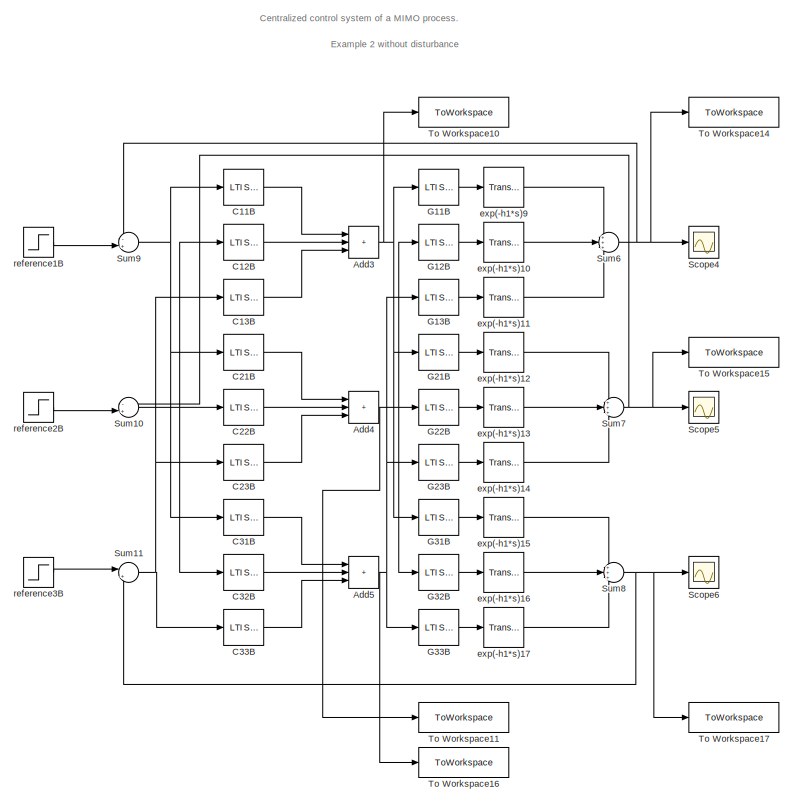
[diagram: root canvas - part 1/3, center side, full height]
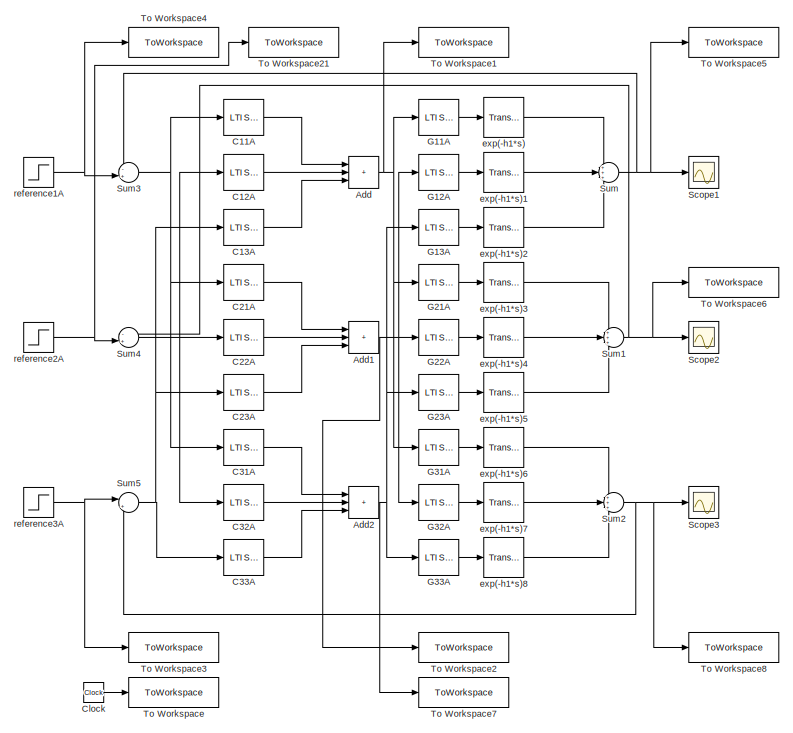
[diagram: root canvas - part 2/3, left side, full height]
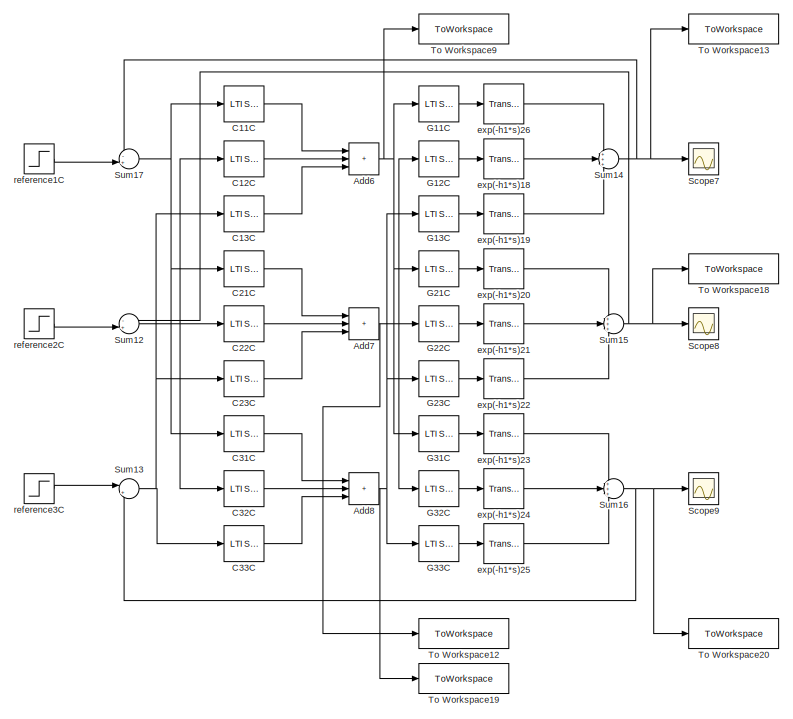
[diagram: root canvas - part 3/3, right side, full height]
MODEL slx_c038fd653a11
KIND model
CONFIG AbsTol = auto
CONFIG EnableMultiTasking = off
CONFIG FixedStep = 1e-5
CONFIG MaxStep = auto
CONFIG MinStep = auto
CONFIG RelTol = 1e-3
CONFIG SampleTimeConstraint = Unconstrained
CONFIG SolverName = FixedStepAuto
CONFIG StartTime = 0.0
CONFIG StopTime = 450
BLOCK [Sum] Add
  IconShape = rectangular
  Inputs = +++
BLOCK [Sum] Add1
  IconShape = rectangular
  Inputs = +++
BLOCK [Sum] Add2
  IconShape = rectangular
  Inputs = +++
BLOCK [Sum] Add3
  IconShape = rectangular
  Inputs = +++
BLOCK [Sum] Add4
  IconShape = rectangular
  Inputs = +++
BLOCK [Sum] Add5
  IconShape = rectangular
  Inputs = +++
BLOCK [Sum] Add6
  IconShape = rectangular
  Inputs = +++
BLOCK [Sum] Add7
  IconShape = rectangular
  Inputs = +++
BLOCK [Sum] Add8
  IconShape = rectangular
  Inputs = +++
BLOCK [Reference] C11A  REF=cstblocks/LTI System
  SourceBlock = cstblocks/LTI System
  SourceType = LTI Block
BLOCK [Reference] C11B  REF=cstblocks/LTI System
  SourceBlock = cstblocks/LTI System
  SourceType = LTI Block
BLOCK [Reference] C11C  REF=cstblocks/LTI System
  SourceBlock = cstblocks/LTI System
  SourceType = LTI Block
BLOCK [Reference] C12A  REF=cstblocks/LTI System
  SourceBlock = cstblocks/LTI System
  SourceType = LTI Block
BLOCK [Reference] C12B  REF=cstblocks/LTI System
  SourceBlock = cstblocks/LTI System
  SourceType = LTI Block
BLOCK [Reference] C12C  REF=cstblocks/LTI System
  SourceBlock = cstblocks/LTI System
  SourceType = LTI Block
BLOCK [Reference] C13A  REF=cstblocks/LTI System
  SourceBlock = cstblocks/LTI System
  SourceType = LTI Block
BLOCK [Reference] C13B  REF=cstblocks/LTI System
  SourceBlock = cstblocks/LTI System
  SourceType = LTI Block
BLOCK [Reference] C13C  REF=cstblocks/LTI System
  SourceBlock = cstblocks/LTI System
  SourceType = LTI Block
BLOCK [Reference] C21A  REF=cstblocks/LTI System
  SourceBlock = cstblocks/LTI System
  SourceType = LTI Block
BLOCK [Reference] C21B  REF=cstblocks/LTI System
  SourceBlock = cstblocks/LTI System
  SourceType = LTI Block
BLOCK [Reference] C21C  REF=cstblocks/LTI System
  SourceBlock = cstblocks/LTI System
  SourceType = LTI Block
BLOCK [Reference] C22A  REF=cstblocks/LTI System
  SourceBlock = cstblocks/LTI System
  SourceType = LTI Block
BLOCK [Reference] C22B  REF=cstblocks/LTI System
  SourceBlock = cstblocks/LTI System
  SourceType = LTI Block
BLOCK [Reference] C22C  REF=cstblocks/LTI System
  SourceBlock = cstblocks/LTI System
  SourceType = LTI Block
BLOCK [Reference] C23A  REF=cstblocks/LTI System
  SourceBlock = cstblocks/LTI System
  SourceType = LTI Block
BLOCK [Reference] C23B  REF=cstblocks/LTI System
  SourceBlock = cstblocks/LTI System
  SourceType = LTI Block
BLOCK [Reference] C23C  REF=cstblocks/LTI System
  SourceBlock = cstblocks/LTI System
  SourceType = LTI Block
BLOCK [Reference] C31A  REF=cstblocks/LTI System
  SourceBlock = cstblocks/LTI System
  SourceType = LTI Block
BLOCK [Reference] C31B  REF=cstblocks/LTI System
  SourceBlock = cstblocks/LTI System
  SourceType = LTI Block
BLOCK [Reference] C31C  REF=cstblocks/LTI System
  SourceBlock = cstblocks/LTI System
  SourceType = LTI Block
BLOCK [Reference] C32A  REF=cstblocks/LTI System
  SourceBlock = cstblocks/LTI System
  SourceType = LTI Block
BLOCK [Reference] C32B  REF=cstblocks/LTI System
  SourceBlock = cstblocks/LTI System
  SourceType = LTI Block
BLOCK [Reference] C32C  REF=cstblocks/LTI System
  SourceBlock = cstblocks/LTI System
  SourceType = LTI Block
BLOCK [Reference] C33A  REF=cstblocks/LTI System
  SourceBlock = cstblocks/LTI System
  SourceType = LTI Block
BLOCK [Reference] C33B  REF=cstblocks/LTI System
  SourceBlock = cstblocks/LTI System
  SourceType = LTI Block
BLOCK [Reference] C33C  REF=cstblocks/LTI System
  SourceBlock = cstblocks/LTI System
  SourceType = LTI Block
BLOCK [Clock] Clock
BLOCK [Reference] G11A  REF=cstblocks/LTI System
  SourceBlock = cstblocks/LTI System
  SourceType = LTI Block
BLOCK [Reference] G11B  REF=cstblocks/LTI System
  SourceBlock = cstblocks/LTI System
  SourceType = LTI Block
BLOCK [Reference] G11C  REF=cstblocks/LTI System
  SourceBlock = cstblocks/LTI System
  SourceType = LTI Block
BLOCK [Reference] G12A  REF=cstblocks/LTI System
  SourceBlock = cstblocks/LTI System
  SourceType = LTI Block
BLOCK [Reference] G12B  REF=cstblocks/LTI System
  SourceBlock = cstblocks/LTI System
  SourceType = LTI Block
BLOCK [Reference] G12C  REF=cstblocks/LTI System
  SourceBlock = cstblocks/LTI System
  SourceType = LTI Block
BLOCK [Reference] G13A  REF=cstblocks/LTI System
  SourceBlock = cstblocks/LTI System
  SourceType = LTI Block
BLOCK [Reference] G13B  REF=cstblocks/LTI System
  SourceBlock = cstblocks/LTI System
  SourceType = LTI Block
BLOCK [Reference] G13C  REF=cstblocks/LTI System
  SourceBlock = cstblocks/LTI System
  SourceType = LTI Block
BLOCK [Reference] G21A  REF=cstblocks/LTI System
  SourceBlock = cstblocks/LTI System
  SourceType = LTI Block
BLOCK [Reference] G21B  REF=cstblocks/LTI System
  SourceBlock = cstblocks/LTI System
  SourceType = LTI Block
BLOCK [Reference] G21C  REF=cstblocks/LTI System
  SourceBlock = cstblocks/LTI System
  SourceType = LTI Block
BLOCK [Reference] G22A  REF=cstblocks/LTI System
  SourceBlock = cstblocks/LTI System
  SourceType = LTI Block
BLOCK [Reference] G22B  REF=cstblocks/LTI System
  SourceBlock = cstblocks/LTI System
  SourceType = LTI Block
BLOCK [Reference] G22C  REF=cstblocks/LTI System
  SourceBlock = cstblocks/LTI System
  SourceType = LTI Block
BLOCK [Reference] G23A  REF=cstblocks/LTI System
  SourceBlock = cstblocks/LTI System
  SourceType = LTI Block
BLOCK [Reference] G23B  REF=cstblocks/LTI System
  SourceBlock = cstblocks/LTI System
  SourceType = LTI Block
BLOCK [Reference] G23C  REF=cstblocks/LTI System
  SourceBlock = cstblocks/LTI System
  SourceType = LTI Block
BLOCK [Reference] G31A  REF=cstblocks/LTI System
  SourceBlock = cstblocks/LTI System
  SourceType = LTI Block
BLOCK [Reference] G31B  REF=cstblocks/LTI System
  SourceBlock = cstblocks/LTI System
  SourceType = LTI Block
BLOCK [Reference] G31C  REF=cstblocks/LTI System
  SourceBlock = cstblocks/LTI System
  SourceType = LTI Block
BLOCK [Reference] G32A  REF=cstblocks/LTI System
  SourceBlock = cstblocks/LTI System
  SourceType = LTI Block
BLOCK [Reference] G32B  REF=cstblocks/LTI System
  SourceBlock = cstblocks/LTI System
  SourceType = LTI Block
BLOCK [Reference] G32C  REF=cstblocks/LTI System
  SourceBlock = cstblocks/LTI System
  SourceType = LTI Block
BLOCK [Reference] G33A  REF=cstblocks/LTI System
  SourceBlock = cstblocks/LTI System
  SourceType = LTI Block
BLOCK [Reference] G33B  REF=cstblocks/LTI System
  SourceBlock = cstblocks/LTI System
  SourceType = LTI Block
BLOCK [Reference] G33C  REF=cstblocks/LTI System
  SourceBlock = cstblocks/LTI System
  SourceType = LTI Block
BLOCK [Scope] Scope1
  Floating = off
  NumInputPorts = 1
  ScopeSpecificationString = Simulink.scopes.TimeScopeBlockCfg('CurrentConfiguration', extmgr.ConfigurationSet(extmgr.Configuration('Core','General UI',true),extmgr.Configuration('Core','Source UI',true),extmgr.Configuration('Sources','WiredSimulink',true),extmgr.Configuration('Visuals','Time Domain',true,'SerializedDisplays',{struct('MinYLimReal','-0.16219','MaxYLimReal','1.18306','YLabelReal','','MinYLimMag','0.00000','MaxY...<+1356ch>
BLOCK [Scope] Scope2
  Floating = off
  NumInputPorts = 1
  ScopeSpecificationString = Simulink.scopes.TimeScopeBlockCfg('CurrentConfiguration', extmgr.ConfigurationSet(extmgr.Configuration('Core','General UI',true),extmgr.Configuration('Core','Source UI',true),extmgr.Configuration('Sources','WiredSimulink',true,'DataLoggingVariableName','ScopeData1'),extmgr.Configuration('Visuals','Time Domain',true,'SerializedDisplays',{struct('MinYLimReal','-1.52462','MaxYLimReal','1.29706','YLab...<+1396ch>
BLOCK [Scope] Scope3
  Floating = off
  NumInputPorts = 1
  ScopeSpecificationString = Simulink.scopes.TimeScopeBlockCfg('CurrentConfiguration', extmgr.ConfigurationSet(extmgr.Configuration('Core','General UI',true),extmgr.Configuration('Core','Source UI',true),extmgr.Configuration('Sources','WiredSimulink',true,'DataLoggingVariableName','ScopeData2'),extmgr.Configuration('Visuals','Time Domain',true,'SerializedDisplays',{struct('MinYLimReal','-0.18663','MaxYLimReal','1.67969','YLab...<+1396ch>
BLOCK [Scope] Scope4
  Floating = off
  NumInputPorts = 1
  ScopeSpecificationString = Simulink.scopes.TimeScopeBlockCfg('CurrentConfiguration', extmgr.ConfigurationSet(extmgr.Configuration('Core','General UI',true),extmgr.Configuration('Core','Source UI',true),extmgr.Configuration('Sources','WiredSimulink',true,'DataLoggingVariableName','ScopeData1'),extmgr.Configuration('Visuals','Time Domain',true,'SerializedDisplays',{struct('MinYLimReal','-0.16219','MaxYLimReal','1.18306','YLab...<+1395ch>
BLOCK [Scope] Scope5
  Floating = off
  NumInputPorts = 1
  ScopeSpecificationString = Simulink.scopes.TimeScopeBlockCfg('CurrentConfiguration', extmgr.ConfigurationSet(extmgr.Configuration('Core','General UI',true),extmgr.Configuration('Core','Source UI',true),extmgr.Configuration('Sources','WiredSimulink',true,'DataLoggingVariableName','ScopeData2'),extmgr.Configuration('Visuals','Time Domain',true,'SerializedDisplays',{struct('MinYLimReal','-1.52462','MaxYLimReal','1.29706','YLab...<+1396ch>
BLOCK [Scope] Scope6
  Floating = off
  NumInputPorts = 1
  ScopeSpecificationString = Simulink.scopes.TimeScopeBlockCfg('CurrentConfiguration', extmgr.ConfigurationSet(extmgr.Configuration('Core','General UI',true),extmgr.Configuration('Core','Source UI',true),extmgr.Configuration('Sources','WiredSimulink',true,'DataLoggingVariableName','ScopeData3'),extmgr.Configuration('Visuals','Time Domain',true,'SerializedDisplays',{struct('MinYLimReal','-0.18663','MaxYLimReal','1.67969','YLab...<+1396ch>
BLOCK [Scope] Scope7
  Floating = off
  NumInputPorts = 1
  ScopeSpecificationString = Simulink.scopes.TimeScopeBlockCfg('CurrentConfiguration', extmgr.ConfigurationSet(extmgr.Configuration('Core','General UI',true),extmgr.Configuration('Core','Source UI',true),extmgr.Configuration('Sources','WiredSimulink',true,'DataLoggingVariableName','ScopeData4'),extmgr.Configuration('Visuals','Time Domain',true,'SerializedDisplays',{struct('MinYLimReal','-0.16219','MaxYLimReal','1.18306','YLab...<+1395ch>
BLOCK [Scope] Scope8
  Floating = off
  NumInputPorts = 1
  ScopeSpecificationString = Simulink.scopes.TimeScopeBlockCfg('CurrentConfiguration', extmgr.ConfigurationSet(extmgr.Configuration('Core','General UI',true),extmgr.Configuration('Core','Source UI',true),extmgr.Configuration('Sources','WiredSimulink',true,'DataLoggingVariableName','ScopeData5'),extmgr.Configuration('Visuals','Time Domain',true,'SerializedDisplays',{struct('MinYLimReal','-0.87505','MaxYLimReal','1.21641','YLab...<+1397ch>
BLOCK [Scope] Scope9
  Floating = off
  NumInputPorts = 1
  ScopeSpecificationString = Simulink.scopes.TimeScopeBlockCfg('CurrentConfiguration', extmgr.ConfigurationSet(extmgr.Configuration('Core','General UI',true),extmgr.Configuration('Core','Source UI',true),extmgr.Configuration('Sources','WiredSimulink',true,'DataLoggingVariableName','ScopeData6'),extmgr.Configuration('Visuals','Time Domain',true,'SerializedDisplays',{struct('MinYLimReal','-0.18663','MaxYLimReal','1.67969','YLab...<+1396ch>
BLOCK [Sum] Sum
  Inputs = +++
BLOCK [Sum] Sum1
  Inputs = +++
BLOCK [Sum] Sum10
  Inputs = -+|
BLOCK [Sum] Sum11
  Inputs = |+-
BLOCK [Sum] Sum12
  Inputs = -+|
BLOCK [Sum] Sum13
  Inputs = |+-
BLOCK [Sum] Sum14
  Inputs = +++
BLOCK [Sum] Sum15
  Inputs = +++
BLOCK [Sum] Sum16
  Inputs = +++
BLOCK [Sum] Sum17
  Inputs = -+|
BLOCK [Sum] Sum2
  Inputs = +++
BLOCK [Sum] Sum3
  Inputs = -+|
BLOCK [Sum] Sum4
  Inputs = -+|
BLOCK [Sum] Sum5
  Inputs = |+-
BLOCK [Sum] Sum6
  Inputs = +++
BLOCK [Sum] Sum7
  Inputs = +++
BLOCK [Sum] Sum8
  Inputs = +++
BLOCK [Sum] Sum9
  Inputs = -+|
BLOCK [ToWorkspace] To Workspace
  FixptAsFi = on
  MaxDataPoints = inf
  SampleTime = -1
  VariableName = cpi_time
BLOCK [ToWorkspace] To Workspace1
  FixptAsFi = on
  MaxDataPoints = inf
  SampleTime = -1
  VariableName = cSignal1A
BLOCK [ToWorkspace] To Workspace10
  FixptAsFi = on
  MaxDataPoints = inf
  SampleTime = -1
  VariableName = cSignal1B
BLOCK [ToWorkspace] To Workspace11
  FixptAsFi = on
  MaxDataPoints = inf
  SampleTime = -1
  VariableName = cSignal2B
BLOCK [ToWorkspace] To Workspace12
  FixptAsFi = on
  MaxDataPoints = inf
  SampleTime = -1
  VariableName = cSignal2C
BLOCK [ToWorkspace] To Workspace13
  FixptAsFi = on
  MaxDataPoints = inf
  SampleTime = -1
  VariableName = y1C
BLOCK [ToWorkspace] To Workspace14
  FixptAsFi = on
  MaxDataPoints = inf
  SampleTime = -1
  VariableName = y1B
BLOCK [ToWorkspace] To Workspace15
  FixptAsFi = on
  MaxDataPoints = inf
  SampleTime = -1
  VariableName = y2B
BLOCK [ToWorkspace] To Workspace16
  FixptAsFi = on
  MaxDataPoints = inf
  SampleTime = -1
  VariableName = cSignal3B
BLOCK [ToWorkspace] To Workspace17
  FixptAsFi = on
  MaxDataPoints = inf
  SampleTime = -1
  VariableName = y3B
BLOCK [ToWorkspace] To Workspace18
  FixptAsFi = on
  MaxDataPoints = inf
  SampleTime = -1
  VariableName = y2C
BLOCK [ToWorkspace] To Workspace19
  FixptAsFi = on
  MaxDataPoints = inf
  SampleTime = -1
  VariableName = cSignal3C
BLOCK [ToWorkspace] To Workspace2
  FixptAsFi = on
  MaxDataPoints = inf
  SampleTime = -1
  VariableName = cSignal2A
BLOCK [ToWorkspace] To Workspace20
  FixptAsFi = on
  MaxDataPoints = inf
  SampleTime = -1
  VariableName = y3C
BLOCK [ToWorkspace] To Workspace21
  FixptAsFi = on
  MaxDataPoints = inf
  SampleTime = -1
  VariableName = u2
BLOCK [ToWorkspace] To Workspace3
  FixptAsFi = on
  MaxDataPoints = inf
  SampleTime = -1
  VariableName = u3
BLOCK [ToWorkspace] To Workspace4
  FixptAsFi = on
  MaxDataPoints = inf
  SampleTime = -1
  VariableName = u1
BLOCK [ToWorkspace] To Workspace5
  FixptAsFi = on
  MaxDataPoints = inf
  SampleTime = -1
  VariableName = y1A
BLOCK [ToWorkspace] To Workspace6
  FixptAsFi = on
  MaxDataPoints = inf
  SampleTime = -1
  VariableName = y2A
BLOCK [ToWorkspace] To Workspace7
  FixptAsFi = on
  MaxDataPoints = inf
  SampleTime = -1
  VariableName = cSignal3A
BLOCK [ToWorkspace] To Workspace8
  FixptAsFi = on
  MaxDataPoints = inf
  SampleTime = -1
  VariableName = y3A
BLOCK [ToWorkspace] To Workspace9
  FixptAsFi = on
  MaxDataPoints = inf
  SampleTime = -1
  VariableName = cSignal1C
BLOCK [TransportDelay] exp(-h1*s)
  DelayTime = 2.6
BLOCK [TransportDelay] exp(-h1*s)1
  DelayTime = 3.5
BLOCK [TransportDelay] exp(-h1*s)10
  DelayTime = 3.5
BLOCK [TransportDelay] exp(-h1*s)11
BLOCK [TransportDelay] exp(-h1*s)12
  DelayTime = 6.5
BLOCK [TransportDelay] exp(-h1*s)13
  DelayTime = 3
BLOCK [TransportDelay] exp(-h1*s)14
  DelayTime = 1.2
BLOCK [TransportDelay] exp(-h1*s)15
  DelayTime = 7
BLOCK [TransportDelay] exp(-h1*s)16
  DelayTime = 7
BLOCK [TransportDelay] exp(-h1*s)17
BLOCK [TransportDelay] exp(-h1*s)18
  DelayTime = 3.5
BLOCK [TransportDelay] exp(-h1*s)19
BLOCK [TransportDelay] exp(-h1*s)2
BLOCK [TransportDelay] exp(-h1*s)20
  DelayTime = 6.5
BLOCK [TransportDelay] exp(-h1*s)21
  DelayTime = 3
BLOCK [TransportDelay] exp(-h1*s)22
  DelayTime = 1.2
BLOCK [TransportDelay] exp(-h1*s)23
  DelayTime = 7
BLOCK [TransportDelay] exp(-h1*s)24
  DelayTime = 7
BLOCK [TransportDelay] exp(-h1*s)25
BLOCK [TransportDelay] exp(-h1*s)26
  DelayTime = 2.6
BLOCK [TransportDelay] exp(-h1*s)3
  DelayTime = 6.5
BLOCK [TransportDelay] exp(-h1*s)4
  DelayTime = 3
BLOCK [TransportDelay] exp(-h1*s)5
  DelayTime = 1.2
BLOCK [TransportDelay] exp(-h1*s)6
  DelayTime = 7
BLOCK [TransportDelay] exp(-h1*s)7
  DelayTime = 7
BLOCK [TransportDelay] exp(-h1*s)8
BLOCK [TransportDelay] exp(-h1*s)9
  DelayTime = 2.6
BLOCK [Step] reference1A
  SampleTime = 0
  Time = 0
BLOCK [Step] reference1B
  SampleTime = 0
  Time = 0
BLOCK [Step] reference1C
  SampleTime = 0
  Time = 0
BLOCK [Step] reference2A
  SampleTime = 0
  Time = 150
BLOCK [Step] reference2B
  SampleTime = 0
  Time = 150
BLOCK [Step] reference2C
  SampleTime = 0
  Time = 150
BLOCK [Step] reference3A
  SampleTime = 0
  Time = 300
BLOCK [Step] reference3B
  SampleTime = 0
  Time = 300
BLOCK [Step] reference3C
  SampleTime = 0
  Time = 300
ANNOTATION (root): Centralized control system of a MIMO process.
ANNOTATION (root): Example 2 without disturbance
NET Add1:1 -> G12A:1, G22A:1, G32A:1, To Workspace2:1
NET Add2:1 -> G13A:1, G23A:1, G33A:1, To Workspace7:1
NET Add3:1 -> G11B:1, G21B:1, G31B:1, To Workspace10:1
NET Add4:1 -> G12B:1, G22B:1, G32B:1, To Workspace11:1
NET Add5:1 -> G13B:1, G23B:1, G33B:1, To Workspace16:1
NET Add6:1 -> G11C:1, G21C:1, G31C:1, To Workspace9:1
NET Add7:1 -> G12C:1, G22C:1, G32C:1, To Workspace12:1
NET Add8:1 -> G13C:1, G23C:1, G33C:1, To Workspace19:1
NET Add:1 -> G11A:1, G21A:1, G31A:1, To Workspace1:1
LINE C11A:1 -> Add:1
LINE C11B:1 -> Add3:1
LINE C11C:1 -> Add6:1
LINE C12A:1 -> Add:2
LINE C12B:1 -> Add3:2
LINE C12C:1 -> Add6:2
LINE C13A:1 -> Add:3
LINE C13B:1 -> Add3:3
LINE C13C:1 -> Add6:3
LINE C21A:1 -> Add1:1
LINE C21B:1 -> Add4:1
LINE C21C:1 -> Add7:1
LINE C22A:1 -> Add1:2
LINE C22B:1 -> Add4:2
LINE C22C:1 -> Add7:2
LINE C23A:1 -> Add1:3
LINE C23B:1 -> Add4:3
LINE C23C:1 -> Add7:3
LINE C31A:1 -> Add2:1
LINE C31B:1 -> Add5:1
LINE C31C:1 -> Add8:1
LINE C32A:1 -> Add2:2
LINE C32B:1 -> Add5:2
LINE C32C:1 -> Add8:2
LINE C33A:1 -> Add2:3
LINE C33B:1 -> Add5:3
LINE C33C:1 -> Add8:3
LINE Clock:1 -> To Workspace:1
LINE G11A:1 -> exp(-h1*s):1
LINE G11B:1 -> exp(-h1*s)9:1
LINE G11C:1 -> exp(-h1*s)26:1
LINE G12A:1 -> exp(-h1*s)1:1
LINE G12B:1 -> exp(-h1*s)10:1
LINE G12C:1 -> exp(-h1*s)18:1
LINE G13A:1 -> exp(-h1*s)2:1
LINE G13B:1 -> exp(-h1*s)11:1
LINE G13C:1 -> exp(-h1*s)19:1
LINE G21A:1 -> exp(-h1*s)3:1
LINE G21B:1 -> exp(-h1*s)12:1
LINE G21C:1 -> exp(-h1*s)20:1
LINE G22A:1 -> exp(-h1*s)4:1
LINE G22B:1 -> exp(-h1*s)13:1
LINE G22C:1 -> exp(-h1*s)21:1
LINE G23A:1 -> exp(-h1*s)5:1
LINE G23B:1 -> exp(-h1*s)14:1
LINE G23C:1 -> exp(-h1*s)22:1
LINE G31A:1 -> exp(-h1*s)6:1
LINE G31B:1 -> exp(-h1*s)15:1
LINE G31C:1 -> exp(-h1*s)23:1
LINE G32A:1 -> exp(-h1*s)7:1
LINE G32B:1 -> exp(-h1*s)16:1
LINE G32C:1 -> exp(-h1*s)24:1
LINE G33A:1 -> exp(-h1*s)8:1
LINE G33B:1 -> exp(-h1*s)17:1
LINE G33C:1 -> exp(-h1*s)25:1
NET Sum10:1 -> C12B:1, C22B:1, C32B:1
NET Sum11:1 -> C13B:1, C23B:1, C33B:1
NET Sum12:1 -> C12C:1, C22C:1, C32C:1
NET Sum13:1 -> C13C:1, C23C:1, C33C:1
NET Sum14:1 -> Scope7:1, Sum17:1, To Workspace13:1
NET Sum15:1 -> Scope8:1, Sum12:1, To Workspace18:1
NET Sum16:1 -> Scope9:1, Sum13:2, To Workspace20:1
NET Sum17:1 -> C11C:1, C21C:1, C31C:1
NET Sum1:1 -> Scope2:1, Sum4:1, To Workspace6:1
NET Sum2:1 -> Scope3:1, Sum5:2, To Workspace8:1
NET Sum3:1 -> C11A:1, C21A:1, C31A:1
NET Sum4:1 -> C12A:1, C22A:1, C32A:1
NET Sum5:1 -> C13A:1, C23A:1, C33A:1
NET Sum6:1 -> Scope4:1, Sum9:1, To Workspace14:1
NET Sum7:1 -> Scope5:1, Sum10:1, To Workspace15:1
NET Sum8:1 -> Scope6:1, Sum11:2, To Workspace17:1
NET Sum9:1 -> C11B:1, C21B:1, C31B:1
NET Sum:1 -> Scope1:1, Sum3:1, To Workspace5:1
LINE exp(-h1*s)10:1 -> Sum6:2
LINE exp(-h1*s)11:1 -> Sum6:3
LINE exp(-h1*s)12:1 -> Sum7:1
LINE exp(-h1*s)13:1 -> Sum7:2
LINE exp(-h1*s)14:1 -> Sum7:3
LINE exp(-h1*s)15:1 -> Sum8:1
LINE exp(-h1*s)16:1 -> Sum8:2
LINE exp(-h1*s)17:1 -> Sum8:3
LINE exp(-h1*s)18:1 -> Sum14:2
LINE exp(-h1*s)19:1 -> Sum14:3
LINE exp(-h1*s)1:1 -> Sum:2
LINE exp(-h1*s)20:1 -> Sum15:1
LINE exp(-h1*s)21:1 -> Sum15:2
LINE exp(-h1*s)22:1 -> Sum15:3
LINE exp(-h1*s)23:1 -> Sum16:1
LINE exp(-h1*s)24:1 -> Sum16:2
LINE exp(-h1*s)25:1 -> Sum16:3
LINE exp(-h1*s)26:1 -> Sum14:1
LINE exp(-h1*s)2:1 -> Sum:3
LINE exp(-h1*s)3:1 -> Sum1:1
LINE exp(-h1*s)4:1 -> Sum1:2
LINE exp(-h1*s)5:1 -> Sum1:3
LINE exp(-h1*s)6:1 -> Sum2:1
LINE exp(-h1*s)7:1 -> Sum2:2
LINE exp(-h1*s)8:1 -> Sum2:3
LINE exp(-h1*s)9:1 -> Sum6:1
LINE exp(-h1*s):1 -> Sum:1
NET reference1A:1 -> Sum3:2, To Workspace4:1
LINE reference1B:1 -> Sum9:2
LINE reference1C:1 -> Sum17:2
NET reference2A:1 -> Sum4:2, To Workspace21:1
LINE reference2B:1 -> Sum10:2
LINE reference2C:1 -> Sum12:2
NET reference3A:1 -> Sum5:1, To Workspace3:1
LINE reference3B:1 -> Sum11:1
LINE reference3C:1 -> Sum13:1
note: NET lines group one-source signal fan-out (src -> all destinations, sorted); 1:1 wires keep LINE
